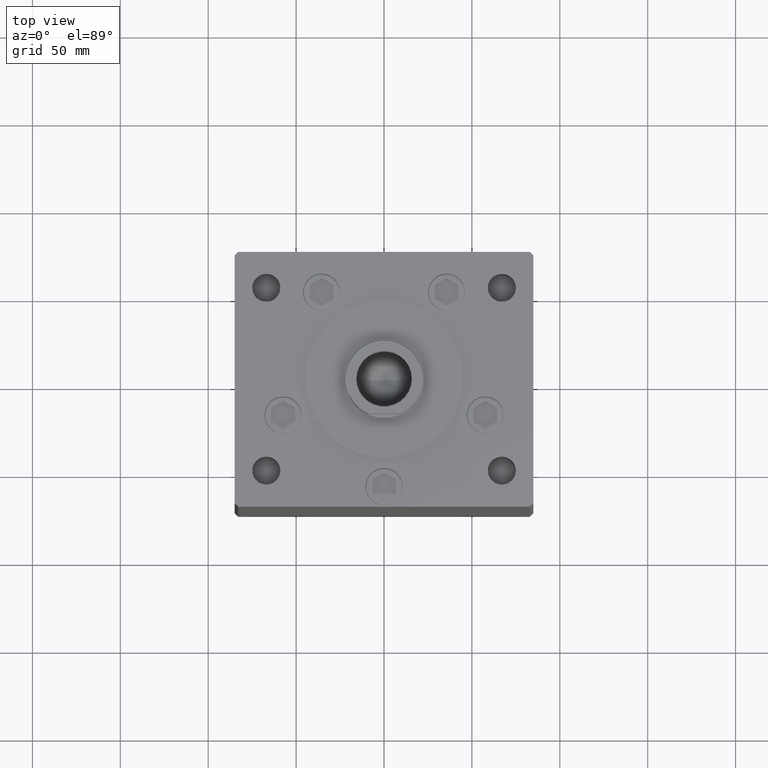
[diagram: clean part render]
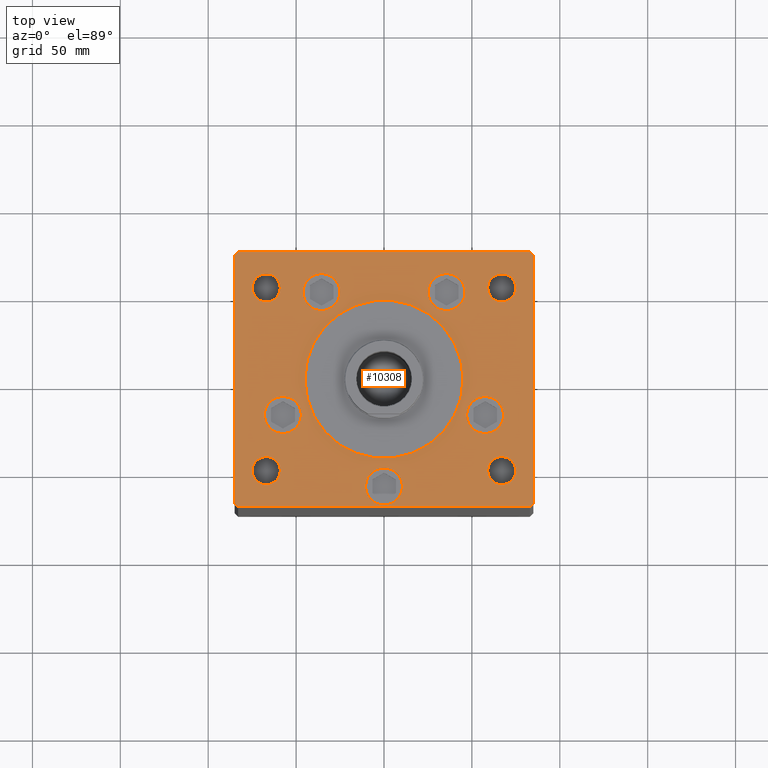
[diagram: same view with one face highlighted and labeled with its STEP entity id]
A machine part, top view. The second image highlights one B-rep face of the part: STEP entity #10308.
In plain terms, the highlighted planar face has unit normal (0, 0, 1).
Its self-contained STEP definition (entity closure, byte-faithful):
#34 = DIRECTION ( 'NONE',  ( 0.000000000000000000, 0.000000000000000000, 1.000000000000000000 ) ) ;
#255 = DIRECTION ( 'NONE',  ( -0.7071067811865500152, 0.7071067811865451302, 0.000000000000000000 ) ) ;
#268 = CIRCLE ( 'NONE', #15426, 8.000000000000007105 ) ;
#424 = CIRCLE ( 'NONE', #35784, 10.50000000000000178 ) ;
#707 = LINE ( 'NONE', #16775, #11280 ) ;
#768 = EDGE_CURVE ( 'NONE', #9226, #18018, #10072, .T. ) ;
#959 = VECTOR ( 'NONE', #14031, 1000.000000000000114 ) ;
#1645 = EDGE_CURVE ( 'NONE', #3229, #44970, #19439, .T. ) ;
#1858 = CIRCLE ( 'NONE', #31304, 8.000000000000000000 ) ;
#1907 = EDGE_CURVE ( 'NONE', #44970, #3229, #3465, .T. ) ;
#1950 = ORIENTED_EDGE ( 'NONE', *, *, #42128, .T. ) ;
#1997 = FACE_BOUND ( 'NONE', #38623, .T. ) ;
#2022 = CARTESIAN_POINT ( 'NONE',  ( -45.00000000000000711, -6.938893903907228378E-15, 0.000000000000000000 ) ) ;
#2576 = DIRECTION ( 'NONE',  ( -0.7071067811865549002, -0.7071067811865401342, 0.000000000000000000 ) ) ;
#2592 = DIRECTION ( 'NONE',  ( 1.000000000000000000, 0.000000000000000000, 0.000000000000000000 ) ) ;
#2738 = LINE ( 'NONE', #31973, #16135 ) ;
#3138 = DIRECTION ( 'NONE',  ( 0.000000000000000000, 0.000000000000000000, 1.000000000000000000 ) ) ;
#3166 = DIRECTION ( 'NONE',  ( -1.000000000000000000, 0.000000000000000000, 0.000000000000000000 ) ) ;
#3229 = VERTEX_POINT ( 'NONE', #32214 ) ;
#3255 = VERTEX_POINT ( 'NONE', #48016 ) ;
#3465 = CIRCLE ( 'NONE', #14410, 10.49999999999999467 ) ;
#3523 = EDGE_CURVE ( 'NONE', #47609, #9219, #8175, .T. ) ;
#4246 = CARTESIAN_POINT ( 'NONE',  ( 45.00000000000000711, -1.427983307744138033E-15, 0.000000000000000000 ) ) ;
#4760 = VERTEX_POINT ( 'NONE', #47270 ) ;
#5485 = DIRECTION ( 'NONE',  ( 1.000000000000000000, 0.000000000000000000, 0.000000000000000000 ) ) ;
#5868 = EDGE_CURVE ( 'NONE', #14487, #21859, #30522, .T. ) ;
#6708 = FACE_BOUND ( 'NONE', #43295, .T. ) ;
#6974 = DIRECTION ( 'NONE',  ( 1.000000000000000000, 0.000000000000000000, 0.000000000000000000 ) ) ;
#7210 = ORIENTED_EDGE ( 'NONE', *, *, #44935, .T. ) ;
#7761 = ORIENTED_EDGE ( 'NONE', *, *, #22898, .T. ) ;
#8175 = LINE ( 'NONE', #39796, #41367 ) ;
#8190 = ORIENTED_EDGE ( 'NONE', *, *, #12263, .T. ) ;
#8269 = EDGE_CURVE ( 'NONE', #4760, #3255, #1858, .T. ) ;
#8331 = EDGE_CURVE ( 'NONE', #3255, #4760, #48117, .T. ) ;
#8501 = CIRCLE ( 'NONE', #32934, 8.000000000000007105 ) ;
#8651 = CIRCLE ( 'NONE', #49058, 7.999999999999992895 ) ;
#8835 = AXIS2_PLACEMENT_3D ( 'NONE', #44811, #35866, #27691 ) ;
#8986 = EDGE_CURVE ( 'NONE', #16691, #33002, #49765, .T. ) ;
#9089 = CARTESIAN_POINT ( 'NONE',  ( 75.00000000000001421, -52.00000000000000711, 0.000000000000000000 ) ) ;
#9137 = DIRECTION ( 'NONE',  ( 0.000000000000000000, 0.000000000000000000, 1.000000000000000000 ) ) ;
#9194 = CARTESIAN_POINT ( 'NONE',  ( 67.00000000000000000, -52.00000000000000711, 0.000000000000000000 ) ) ;
#9219 = VERTEX_POINT ( 'NONE', #17559 ) ;
#9226 = VERTEX_POINT ( 'NONE', #45492 ) ;
#10011 = ORIENTED_EDGE ( 'NONE', *, *, #35132, .T. ) ;
#10072 = LINE ( 'NONE', #39766, #959 ) ;
#10115 = ORIENTED_EDGE ( 'NONE', *, *, #46213, .T. ) ;
#10308 = ADVANCED_FACE ( 'NONE', ( #6708, #18827, #51243, #43345, #19087, #35178, #18061, #22003, #1997, #15133, #26484 ), #18563, .T. ) ;
#10451 = CIRCLE ( 'NONE', #23907, 10.50000000000000178 ) ;
#10478 = DIRECTION ( 'NONE',  ( 1.000000000000000000, 0.000000000000000000, 0.000000000000000000 ) ) ;
#10553 = LINE ( 'NONE', #18452, #15608 ) ;
#10645 = ORIENTED_EDGE ( 'NONE', *, *, #1645, .F. ) ;
#11280 = VECTOR ( 'NONE', #27507, 1000.000000000000000 ) ;
#11302 = DIRECTION ( 'NONE',  ( -1.000000000000000000, 0.000000000000000000, 0.000000000000000000 ) ) ;
#11359 = EDGE_CURVE ( 'NONE', #26787, #21838, #45693, .T. ) ;
#11463 = ORIENTED_EDGE ( 'NONE', *, *, #48498, .F. ) ;
#11697 = ORIENTED_EDGE ( 'NONE', *, *, #11359, .F. ) ;
#11720 = EDGE_CURVE ( 'NONE', #31180, #25487, #32265, .T. ) ;
#12158 = CARTESIAN_POINT ( 'NONE',  ( 10.50000000000000000, -61.00000000000000000, 0.000000000000000000 ) ) ;
#12263 = EDGE_CURVE ( 'NONE', #18741, #26345, #268, .T. ) ;
#12826 = DIRECTION ( 'NONE',  ( 1.000000000000000000, 0.000000000000000000, 0.000000000000000000 ) ) ;
#12935 = ORIENTED_EDGE ( 'NONE', *, *, #8269, .F. ) ;
#12977 = AXIS2_PLACEMENT_3D ( 'NONE', #30791, #9137, #12826 ) ;
#13157 = EDGE_CURVE ( 'NONE', #41115, #44467, #44902, .T. ) ;
#13443 = DIRECTION ( 'NONE',  ( 1.000000000000000000, 0.000000000000000000, 0.000000000000000000 ) ) ;
#13931 = CARTESIAN_POINT ( 'NONE',  ( -57.51135153650587029, -20.33333333333332504, 0.000000000000000000 ) ) ;
#14031 = DIRECTION ( 'NONE',  ( 0.7071067811865474617, 0.7071067811865474617, 0.000000000000000000 ) ) ;
#14039 = ORIENTED_EDGE ( 'NONE', *, *, #768, .T. ) ;
#14053 = DIRECTION ( 'NONE',  ( 0.000000000000000000, 0.000000000000000000, 1.000000000000000000 ) ) ;
#14175 = CARTESIAN_POINT ( 'NONE',  ( -82.99999999999998579, 72.49999999999998579, 0.000000000000000000 ) ) ;
#14410 = AXIS2_PLACEMENT_3D ( 'NONE', #36152, #25522, #30002 ) ;
#14487 = VERTEX_POINT ( 'NONE', #2022 ) ;
#14588 = VERTEX_POINT ( 'NONE', #14903 ) ;
#14830 = DIRECTION ( 'NONE',  ( 1.000000000000000000, 0.000000000000000000, 0.000000000000000000 ) ) ;
#14903 = CARTESIAN_POINT ( 'NONE',  ( -25.06063263990113299, 49.56249999999997868, 0.000000000000000000 ) ) ;
#15125 = CARTESIAN_POINT ( 'NONE',  ( -85.00000000000000000, -70.50000000000004263, 0.000000000000000000 ) ) ;
#15133 = FACE_OUTER_BOUND ( 'NONE', #39606, .T. ) ;
#15426 = AXIS2_PLACEMENT_3D ( 'NONE', #9194, #21320, #38876 ) ;
#15529 = ORIENTED_EDGE ( 'NONE', *, *, #29047, .T. ) ;
#15608 = VECTOR ( 'NONE', #23185, 1000.000000000000114 ) ;
#15658 = DIRECTION ( 'NONE',  ( -0.000000000000000000, -0.000000000000000000, -1.000000000000000000 ) ) ;
#16135 = VECTOR ( 'NONE', #35155, 1000.000000000000000 ) ;
#16163 = CARTESIAN_POINT ( 'NONE',  ( -83.00000000000001421, -72.50000000000004263, 0.000000000000000000 ) ) ;
#16445 = DIRECTION ( 'NONE',  ( -1.000000000000000000, 0.000000000000000000, 0.000000000000000000 ) ) ;
#16496 = DIRECTION ( 'NONE',  ( 1.000000000000000000, 0.000000000000000000, 0.000000000000000000 ) ) ;
#16691 = VERTEX_POINT ( 'NONE', #48370 ) ;
#16775 = CARTESIAN_POINT ( 'NONE',  ( 85.00000000000001421, -70.49999999999994316, 0.000000000000000000 ) ) ;
#16988 = VERTEX_POINT ( 'NONE', #51216 ) ;
#17122 = LINE ( 'NONE', #25279, #47469 ) ;
#17168 = DIRECTION ( 'NONE',  ( 1.000000000000000000, 0.000000000000000000, 0.000000000000000000 ) ) ;
#17559 = CARTESIAN_POINT ( 'NONE',  ( 83.00000000000001421, 72.50000000000002842, 0.000000000000000000 ) ) ;
#17730 = EDGE_CURVE ( 'NONE', #19018, #29648, #424, .T. ) ;
#18018 = VERTEX_POINT ( 'NONE', #51137 ) ;
#18036 = ORIENTED_EDGE ( 'NONE', *, *, #3523, .T. ) ;
#18061 = FACE_BOUND ( 'NONE', #42610, .T. ) ;
#18452 = CARTESIAN_POINT ( 'NONE',  ( -85.00000000000000000, -70.50000000000004263, 0.000000000000000000 ) ) ;
#18563 = PLANE ( 'NONE',  #43999 ) ;
#18741 = VERTEX_POINT ( 'NONE', #9089 ) ;
#18827 = FACE_BOUND ( 'NONE', #24801, .T. ) ;
#19018 = VERTEX_POINT ( 'NONE', #27745 ) ;
#19087 = FACE_BOUND ( 'NONE', #32755, .T. ) ;
#19439 = CIRCLE ( 'NONE', #37150, 10.49999999999999467 ) ;
#19799 = DIRECTION ( 'NONE',  ( 1.000000000000000000, 0.000000000000000000, 0.000000000000000000 ) ) ;
#20435 = DIRECTION ( 'NONE',  ( 0.000000000000000000, 0.000000000000000000, 1.000000000000000000 ) ) ;
#20582 = EDGE_CURVE ( 'NONE', #16988, #9226, #23536, .T. ) ;
#20648 = CARTESIAN_POINT ( 'NONE',  ( -67.00000000000000000, 52.00000000000001421, 0.000000000000000000 ) ) ;
#21104 = CARTESIAN_POINT ( 'NONE',  ( 75.00000000000001421, 52.00000000000000000, 0.000000000000000000 ) ) ;
#21310 = AXIS2_PLACEMENT_3D ( 'NONE', #25589, #45365, #17168 ) ;
#21320 = DIRECTION ( 'NONE',  ( -0.000000000000000000, -0.000000000000000000, -1.000000000000000000 ) ) ;
#21838 = VERTEX_POINT ( 'NONE', #12158 ) ;
#21859 = VERTEX_POINT ( 'NONE', #4246 ) ;
#21982 = DIRECTION ( 'NONE',  ( 1.000000000000000000, 0.000000000000000000, 0.000000000000000000 ) ) ;
#22003 = FACE_BOUND ( 'NONE', #48402, .T. ) ;
#22160 = AXIS2_PLACEMENT_3D ( 'NONE', #13931, #45825, #38179 ) ;
#22780 = DIRECTION ( 'NONE',  ( 1.000000000000000000, 0.000000000000000000, 0.000000000000000000 ) ) ;
#22861 = CARTESIAN_POINT ( 'NONE',  ( -85.00000000000000000, 70.50000000000000000, 0.000000000000000000 ) ) ;
#22898 = EDGE_CURVE ( 'NONE', #25139, #16988, #10553, .T. ) ;
#23048 = DIRECTION ( 'NONE',  ( 0.000000000000000000, 0.000000000000000000, 1.000000000000000000 ) ) ;
#23185 = DIRECTION ( 'NONE',  ( 0.7071067811865474617, -0.7071067811865474617, 0.000000000000000000 ) ) ;
#23188 = CARTESIAN_POINT ( 'NONE',  ( 67.00000000000000000, -52.00000000000000711, 0.000000000000000000 ) ) ;
#23415 = CARTESIAN_POINT ( 'NONE',  ( -67.00000000000000000, 52.00000000000001421, 0.000000000000000000 ) ) ;
#23536 = LINE ( 'NONE', #16163, #32482 ) ;
#23877 = CIRCLE ( 'NONE', #31491, 10.50000000000000000 ) ;
#23907 = AXIS2_PLACEMENT_3D ( 'NONE', #27678, #31637, #47446 ) ;
#24801 = EDGE_LOOP ( 'NONE', ( #45800, #35930 ) ) ;
#25139 = VERTEX_POINT ( 'NONE', #15125 ) ;
#25191 = ORIENTED_EDGE ( 'NONE', *, *, #17730, .F. ) ;
#25279 = CARTESIAN_POINT ( 'NONE',  ( 83.00000000000001421, 72.50000000000002842, 0.000000000000000000 ) ) ;
#25475 = AXIS2_PLACEMENT_3D ( 'NONE', #46203, #14053, #14830 ) ;
#25487 = VERTEX_POINT ( 'NONE', #49241 ) ;
#25522 = DIRECTION ( 'NONE',  ( 0.000000000000000000, 0.000000000000000000, 1.000000000000000000 ) ) ;
#25589 = CARTESIAN_POINT ( 'NONE',  ( 67.00000000000000000, 52.00000000000000000, 0.000000000000000000 ) ) ;
#26214 = DIRECTION ( 'NONE',  ( -0.000000000000000000, 0.000000000000000000, 1.000000000000000000 ) ) ;
#26345 = VERTEX_POINT ( 'NONE', #47037 ) ;
#26365 = DIRECTION ( 'NONE',  ( -0.000000000000000000, -0.000000000000000000, -1.000000000000000000 ) ) ;
#26390 = ORIENTED_EDGE ( 'NONE', *, *, #40350, .F. ) ;
#26484 = FACE_BOUND ( 'NONE', #37301, .T. ) ;
#26787 = VERTEX_POINT ( 'NONE', #36931 ) ;
#27121 = AXIS2_PLACEMENT_3D ( 'NONE', #37436, #33488, #13443 ) ;
#27481 = EDGE_LOOP ( 'NONE', ( #10645, #27762 ) ) ;
#27507 = DIRECTION ( 'NONE',  ( 0.000000000000000000, 1.000000000000000000, 0.000000000000000000 ) ) ;
#27678 = CARTESIAN_POINT ( 'NONE',  ( -35.56063263990113654, 49.56249999999997868, 0.000000000000000000 ) ) ;
#27691 = DIRECTION ( 'NONE',  ( 1.000000000000000000, 0.000000000000000000, 0.000000000000000000 ) ) ;
#27745 = CARTESIAN_POINT ( 'NONE',  ( 46.06063263990113654, 49.56249999999997868, 0.000000000000000000 ) ) ;
#27762 = ORIENTED_EDGE ( 'NONE', *, *, #1907, .F. ) ;
#28394 = EDGE_LOOP ( 'NONE', ( #51147, #11697 ) ) ;
#28597 = ORIENTED_EDGE ( 'NONE', *, *, #11720, .F. ) ;
#28603 = CIRCLE ( 'NONE', #48802, 7.999999999999992895 ) ;
#28785 = VECTOR ( 'NONE', #2576, 1000.000000000000000 ) ;
#29047 = EDGE_CURVE ( 'NONE', #43824, #47960, #28603, .T. ) ;
#29648 = VERTEX_POINT ( 'NONE', #36990 ) ;
#29882 = ORIENTED_EDGE ( 'NONE', *, *, #8331, .F. ) ;
#30002 = DIRECTION ( 'NONE',  ( 1.000000000000000000, 0.000000000000000000, 0.000000000000000000 ) ) ;
#30246 = CARTESIAN_POINT ( 'NONE',  ( -59.00000000000000711, 52.00000000000001421, 0.000000000000000000 ) ) ;
#30522 = CIRCLE ( 'NONE', #37267, 45.00000000000000711 ) ;
#30630 = CARTESIAN_POINT ( 'NONE',  ( -46.06063263990113654, 49.56249999999997868, 0.000000000000000000 ) ) ;
#30791 = CARTESIAN_POINT ( 'NONE',  ( -35.56063263990113654, 49.56249999999997868, 0.000000000000000000 ) ) ;
#31180 = VERTEX_POINT ( 'NONE', #21104 ) ;
#31193 = ORIENTED_EDGE ( 'NONE', *, *, #46028, .F. ) ;
#31304 = AXIS2_PLACEMENT_3D ( 'NONE', #46068, #33686, #5485 ) ;
#31459 = CARTESIAN_POINT ( 'NONE',  ( 47.01135153650587739, -20.33333333333332504, 0.000000000000000000 ) ) ;
#31491 = AXIS2_PLACEMENT_3D ( 'NONE', #33716, #42666, #2592 ) ;
#31637 = DIRECTION ( 'NONE',  ( 0.000000000000000000, 0.000000000000000000, 1.000000000000000000 ) ) ;
#31973 = CARTESIAN_POINT ( 'NONE',  ( -85.00000000000000000, 70.50000000000000000, 0.000000000000000000 ) ) ;
#32214 = CARTESIAN_POINT ( 'NONE',  ( 68.01135153650587029, -20.33333333333332504, 0.000000000000000000 ) ) ;
#32265 = CIRCLE ( 'NONE', #21310, 8.000000000000007105 ) ;
#32482 = VECTOR ( 'NONE', #39628, 1000.000000000000000 ) ;
#32546 = EDGE_CURVE ( 'NONE', #26345, #18741, #8501, .T. ) ;
#32755 = EDGE_LOOP ( 'NONE', ( #25191, #50277 ) ) ;
#32934 = AXIS2_PLACEMENT_3D ( 'NONE', #23188, #26365, #3166 ) ;
#33002 = VERTEX_POINT ( 'NONE', #22861 ) ;
#33082 = CIRCLE ( 'NONE', #49895, 10.50000000000000178 ) ;
#33488 = DIRECTION ( 'NONE',  ( 0.000000000000000000, 0.000000000000000000, 1.000000000000000000 ) ) ;
#33686 = DIRECTION ( 'NONE',  ( 0.000000000000000000, 0.000000000000000000, 1.000000000000000000 ) ) ;
#33716 = CARTESIAN_POINT ( 'NONE',  ( 0.000000000000000000, -61.00000000000000000, 0.000000000000000000 ) ) ;
#33863 = DIRECTION ( 'NONE',  ( 0.000000000000000000, 0.000000000000000000, 1.000000000000000000 ) ) ;
#33954 = DIRECTION ( 'NONE',  ( 0.000000000000000000, 0.000000000000000000, 1.000000000000000000 ) ) ;
#34925 = CARTESIAN_POINT ( 'NONE',  ( 0.000000000000000000, -6.938893903907228378E-15, 0.000000000000000000 ) ) ;
#35132 = EDGE_CURVE ( 'NONE', #33002, #25139, #2738, .T. ) ;
#35155 = DIRECTION ( 'NONE',  ( 0.000000000000000000, -1.000000000000000000, 0.000000000000000000 ) ) ;
#35178 = FACE_BOUND ( 'NONE', #39100, .T. ) ;
#35570 = CARTESIAN_POINT ( 'NONE',  ( -68.01135153650587029, -20.33333333333332504, 0.000000000000000000 ) ) ;
#35629 = CARTESIAN_POINT ( 'NONE',  ( 57.51135153650587029, -20.33333333333332504, 0.000000000000000000 ) ) ;
#35784 = AXIS2_PLACEMENT_3D ( 'NONE', #52067, #20435, #16496 ) ;
#35866 = DIRECTION ( 'NONE',  ( 0.000000000000000000, 0.000000000000000000, 1.000000000000000000 ) ) ;
#35930 = ORIENTED_EDGE ( 'NONE', *, *, #37684, .F. ) ;
#36152 = CARTESIAN_POINT ( 'NONE',  ( 57.51135153650587029, -20.33333333333332504, 0.000000000000000000 ) ) ;
#36292 = VERTEX_POINT ( 'NONE', #30630 ) ;
#36549 = EDGE_CURVE ( 'NONE', #29648, #19018, #37258, .T. ) ;
#36931 = CARTESIAN_POINT ( 'NONE',  ( -10.50000000000000000, -61.00000000000000000, 0.000000000000000000 ) ) ;
#36949 = ORIENTED_EDGE ( 'NONE', *, *, #8986, .T. ) ;
#36990 = CARTESIAN_POINT ( 'NONE',  ( 25.06063263990113299, 49.56249999999997868, 0.000000000000000000 ) ) ;
#37150 = AXIS2_PLACEMENT_3D ( 'NONE', #35629, #34, #19799 ) ;
#37258 = CIRCLE ( 'NONE', #27121, 10.50000000000000178 ) ;
#37267 = AXIS2_PLACEMENT_3D ( 'NONE', #34925, #23048, #6974 ) ;
#37289 = CARTESIAN_POINT ( 'NONE',  ( -75.00000000000000000, 52.00000000000001421, 0.000000000000000000 ) ) ;
#37301 = EDGE_LOOP ( 'NONE', ( #8190, #47879 ) ) ;
#37427 = ORIENTED_EDGE ( 'NONE', *, *, #5868, .F. ) ;
#37436 = CARTESIAN_POINT ( 'NONE',  ( 35.56063263990113654, 49.56249999999997868, 0.000000000000000000 ) ) ;
#37674 = DIRECTION ( 'NONE',  ( -1.000000000000000000, -2.508033941171286997E-16, 0.000000000000000000 ) ) ;
#37684 = EDGE_CURVE ( 'NONE', #44467, #41115, #33082, .T. ) ;
#38070 = CARTESIAN_POINT ( 'NONE',  ( 85.00000000000001421, 70.50000000000002842, 0.000000000000000000 ) ) ;
#38179 = DIRECTION ( 'NONE',  ( 1.000000000000000000, 0.000000000000000000, 0.000000000000000000 ) ) ;
#38623 = EDGE_LOOP ( 'NONE', ( #12935, #29882 ) ) ;
#38876 = DIRECTION ( 'NONE',  ( -1.000000000000000000, 0.000000000000000000, 0.000000000000000000 ) ) ;
#38986 = CARTESIAN_POINT ( 'NONE',  ( -57.51135153650587029, -20.33333333333332504, 0.000000000000000000 ) ) ;
#39050 = CIRCLE ( 'NONE', #12977, 10.50000000000000178 ) ;
#39100 = EDGE_LOOP ( 'NONE', ( #31193, #39763 ) ) ;
#39606 = EDGE_LOOP ( 'NONE', ( #7761, #44890, #14039, #7210, #18036, #10115, #36949, #10011 ) ) ;
#39628 = DIRECTION ( 'NONE',  ( 1.000000000000000000, 5.852079196066335998E-16, 0.000000000000000000 ) ) ;
#39692 = CARTESIAN_POINT ( 'NONE',  ( -47.01135153650587029, -20.33333333333332504, 0.000000000000000000 ) ) ;
#39763 = ORIENTED_EDGE ( 'NONE', *, *, #45625, .F. ) ;
#39766 = CARTESIAN_POINT ( 'NONE',  ( 83.00000000000001421, -72.49999999999994316, 0.000000000000000000 ) ) ;
#39796 = CARTESIAN_POINT ( 'NONE',  ( 85.00000000000001421, 70.50000000000002842, 0.000000000000000000 ) ) ;
#40350 = EDGE_CURVE ( 'NONE', #21859, #14487, #49016, .T. ) ;
#41115 = VERTEX_POINT ( 'NONE', #39692 ) ;
#41367 = VECTOR ( 'NONE', #255, 1000.000000000000114 ) ;
#41779 = CARTESIAN_POINT ( 'NONE',  ( 0.000000000000000000, -6.938893903907228378E-15, 0.000000000000000000 ) ) ;
#42116 = CARTESIAN_POINT ( 'NONE',  ( -67.00000000000000000, -52.00000000000000711, 0.000000000000000000 ) ) ;
#42128 = EDGE_CURVE ( 'NONE', #47960, #43824, #8651, .T. ) ;
#42262 = AXIS2_PLACEMENT_3D ( 'NONE', #42116, #33954, #10478 ) ;
#42610 = EDGE_LOOP ( 'NONE', ( #15529, #1950 ) ) ;
#42666 = DIRECTION ( 'NONE',  ( 0.000000000000000000, 0.000000000000000000, 1.000000000000000000 ) ) ;
#43295 = EDGE_LOOP ( 'NONE', ( #37427, #26390 ) ) ;
#43342 = CIRCLE ( 'NONE', #8835, 8.000000000000007105 ) ;
#43345 = FACE_BOUND ( 'NONE', #27481, .T. ) ;
#43824 = VERTEX_POINT ( 'NONE', #30246 ) ;
#43999 = AXIS2_PLACEMENT_3D ( 'NONE', #50728, #26214, #22780 ) ;
#44467 = VERTEX_POINT ( 'NONE', #35570 ) ;
#44811 = CARTESIAN_POINT ( 'NONE',  ( 67.00000000000000000, 52.00000000000000000, 0.000000000000000000 ) ) ;
#44890 = ORIENTED_EDGE ( 'NONE', *, *, #20582, .T. ) ;
#44902 = CIRCLE ( 'NONE', #22160, 10.50000000000000178 ) ;
#44935 = EDGE_CURVE ( 'NONE', #18018, #47609, #707, .T. ) ;
#44970 = VERTEX_POINT ( 'NONE', #31459 ) ;
#45365 = DIRECTION ( 'NONE',  ( 0.000000000000000000, 0.000000000000000000, 1.000000000000000000 ) ) ;
#45492 = CARTESIAN_POINT ( 'NONE',  ( 83.00000000000001421, -72.49999999999994316, 0.000000000000000000 ) ) ;
#45625 = EDGE_CURVE ( 'NONE', #36292, #14588, #39050, .T. ) ;
#45693 = CIRCLE ( 'NONE', #25475, 10.50000000000000000 ) ;
#45800 = ORIENTED_EDGE ( 'NONE', *, *, #13157, .F. ) ;
#45825 = DIRECTION ( 'NONE',  ( 0.000000000000000000, 0.000000000000000000, 1.000000000000000000 ) ) ;
#46028 = EDGE_CURVE ( 'NONE', #14588, #36292, #10451, .T. ) ;
#46068 = CARTESIAN_POINT ( 'NONE',  ( -67.00000000000000000, -52.00000000000000711, 0.000000000000000000 ) ) ;
#46203 = CARTESIAN_POINT ( 'NONE',  ( 0.000000000000000000, -61.00000000000000000, 0.000000000000000000 ) ) ;
#46213 = EDGE_CURVE ( 'NONE', #9219, #16691, #17122, .T. ) ;
#46230 = EDGE_CURVE ( 'NONE', #21838, #26787, #23877, .T. ) ;
#46367 = DIRECTION ( 'NONE',  ( 1.000000000000000000, 0.000000000000000000, 0.000000000000000000 ) ) ;
#47037 = CARTESIAN_POINT ( 'NONE',  ( 59.00000000000000000, -52.00000000000000711, 0.000000000000000000 ) ) ;
#47270 = CARTESIAN_POINT ( 'NONE',  ( -59.00000000000000711, -52.00000000000000711, 0.000000000000000000 ) ) ;
#47406 = DIRECTION ( 'NONE',  ( -0.000000000000000000, -0.000000000000000000, -1.000000000000000000 ) ) ;
#47446 = DIRECTION ( 'NONE',  ( 1.000000000000000000, 0.000000000000000000, 0.000000000000000000 ) ) ;
#47469 = VECTOR ( 'NONE', #37674, 1000.000000000000000 ) ;
#47609 = VERTEX_POINT ( 'NONE', #38070 ) ;
#47879 = ORIENTED_EDGE ( 'NONE', *, *, #32546, .T. ) ;
#47960 = VERTEX_POINT ( 'NONE', #37289 ) ;
#48016 = CARTESIAN_POINT ( 'NONE',  ( -75.00000000000000000, -52.00000000000000711, 0.000000000000000000 ) ) ;
#48117 = CIRCLE ( 'NONE', #42262, 8.000000000000000000 ) ;
#48370 = CARTESIAN_POINT ( 'NONE',  ( -82.99999999999998579, 72.49999999999998579, 0.000000000000000000 ) ) ;
#48402 = EDGE_LOOP ( 'NONE', ( #28597, #11463 ) ) ;
#48498 = EDGE_CURVE ( 'NONE', #25487, #31180, #43342, .T. ) ;
#48802 = AXIS2_PLACEMENT_3D ( 'NONE', #23415, #47406, #11302 ) ;
#49016 = CIRCLE ( 'NONE', #49841, 45.00000000000000711 ) ;
#49058 = AXIS2_PLACEMENT_3D ( 'NONE', #20648, #15658, #16445 ) ;
#49241 = CARTESIAN_POINT ( 'NONE',  ( 59.00000000000000000, 52.00000000000000000, 0.000000000000000000 ) ) ;
#49765 = LINE ( 'NONE', #14175, #28785 ) ;
#49841 = AXIS2_PLACEMENT_3D ( 'NONE', #41779, #33863, #21982 ) ;
#49895 = AXIS2_PLACEMENT_3D ( 'NONE', #38986, #3138, #46367 ) ;
#50277 = ORIENTED_EDGE ( 'NONE', *, *, #36549, .F. ) ;
#50728 = CARTESIAN_POINT ( 'NONE',  ( 0.000000000000000000, 0.000000000000000000, 0.000000000000000000 ) ) ;
#51137 = CARTESIAN_POINT ( 'NONE',  ( 85.00000000000001421, -70.49999999999994316, 0.000000000000000000 ) ) ;
#51147 = ORIENTED_EDGE ( 'NONE', *, *, #46230, .F. ) ;
#51216 = CARTESIAN_POINT ( 'NONE',  ( -83.00000000000001421, -72.50000000000004263, 0.000000000000000000 ) ) ;
#51243 = FACE_BOUND ( 'NONE', #28394, .T. ) ;
#52067 = CARTESIAN_POINT ( 'NONE',  ( 35.56063263990113654, 49.56249999999997868, 0.000000000000000000 ) ) ;